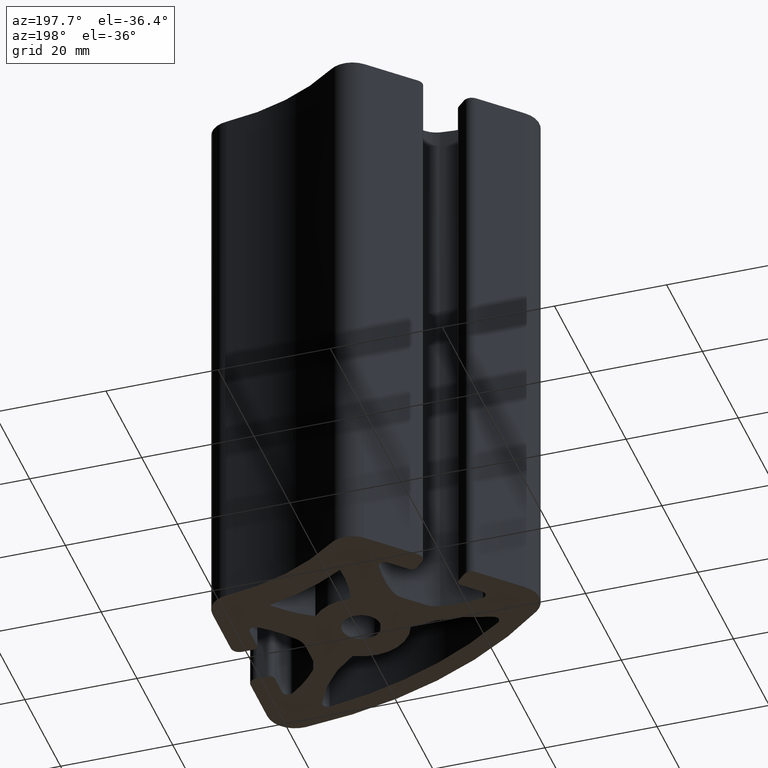
[diagram: clean part render]
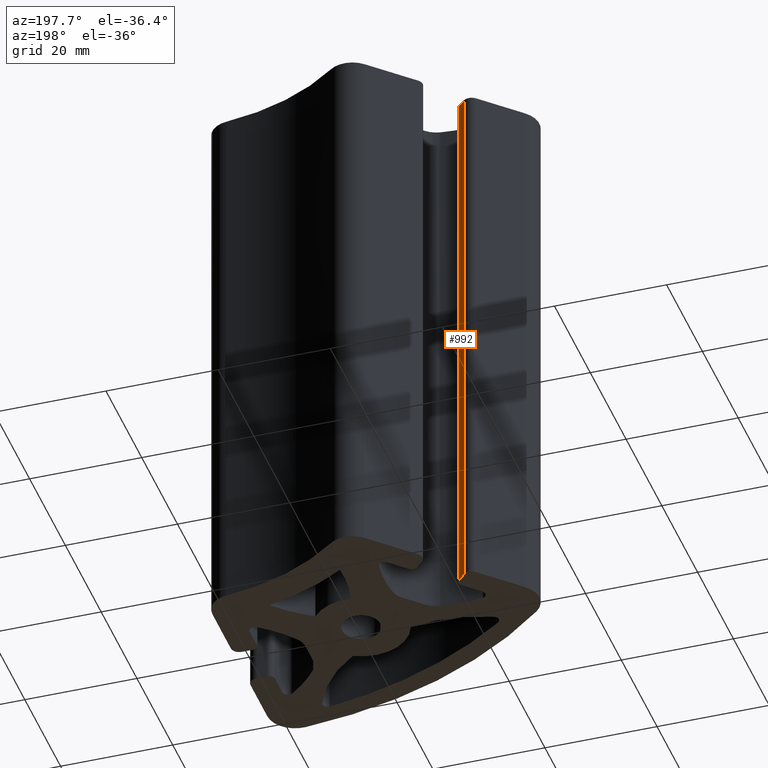
[diagram: same view with one face highlighted and labeled with its STEP entity id]
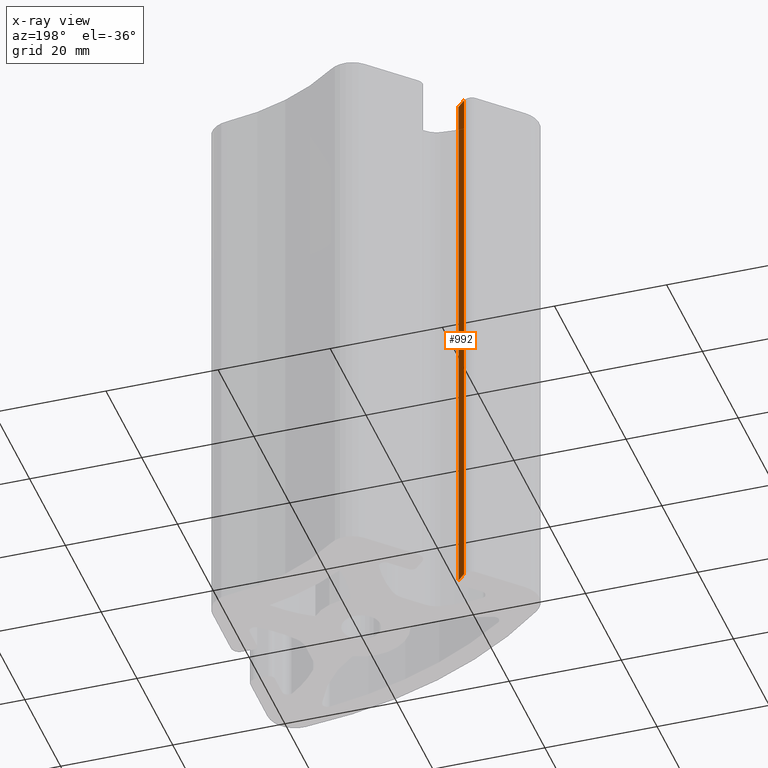
[diagram: x-ray of the same camera — body ghosted, the highlighted face saturated]
A machine part, auxiliary view. The second image highlights one B-rep face of the part: STEP entity #992.
The next image is the same camera in x-ray: the body ghosted, the highlighted face saturated — about 0% of this face is hidden behind the body in this view.
In plain terms, the highlighted planar face has unit normal (0.7071, 0.7071, 0).
Its self-contained STEP definition (entity closure, byte-faithful):
#27=PLANE('',#1069);
#54=FACE_OUTER_BOUND('',#107,.T.);
#107=EDGE_LOOP('',(#699,#700,#701,#702));
#177=LINE('',#1590,#255);
#178=LINE('',#1594,#256);
#179=LINE('',#1596,#257);
#180=LINE('',#1597,#258);
#255=VECTOR('',#1260,100.);
#256=VECTOR('',#1265,2.00000000003804);
#257=VECTOR('',#1266,100.);
#258=VECTOR('',#1267,2.00000000003804);
#413=VERTEX_POINT('',#1587);
#414=VERTEX_POINT('',#1589);
#415=VERTEX_POINT('',#1593);
#416=VERTEX_POINT('',#1595);
#530=EDGE_CURVE('',#413,#414,#177,.T.);
#532=EDGE_CURVE('',#413,#415,#178,.T.);
#533=EDGE_CURVE('',#415,#416,#179,.T.);
#534=EDGE_CURVE('',#414,#416,#180,.T.);
#699=ORIENTED_EDGE('',*,*,#532,.T.);
#700=ORIENTED_EDGE('',*,*,#533,.T.);
#701=ORIENTED_EDGE('',*,*,#534,.F.);
#702=ORIENTED_EDGE('',*,*,#530,.F.);
#992=ADVANCED_FACE('',(#54),#27,.T.);
#1069=AXIS2_PLACEMENT_3D('',#1592,#1263,#1264);
#1260=DIRECTION('',(0.,0.,1.));
#1263=DIRECTION('center_axis',(0.707106832886573,0.707106729486518,0.));
#1264=DIRECTION('ref_axis',(0.,0.,-1.));
#1265=DIRECTION('',(-0.707106729486518,0.707106832886574,0.));
#1266=DIRECTION('',(0.,0.,1.));
#1267=DIRECTION('',(-0.707106729486518,0.707106832886574,0.));
#1587=CARTESIAN_POINT('',(-19.8189537566771,7.70306566936529,0.));
#1589=CARTESIAN_POINT('',(-19.8189537566771,7.70306566936529,100.));
#1590=CARTESIAN_POINT('',(-19.8189537566771,7.70306566936529,0.));
#1592=CARTESIAN_POINT('Origin',(-19.8189537566771,7.70306566936529,0.));
#1593=CARTESIAN_POINT('',(-21.233167215677,9.11727933516533,0.));
#1594=CARTESIAN_POINT('',(-19.8189537566771,7.70306566936529,0.));
#1595=CARTESIAN_POINT('',(-21.233167215677,9.11727933516533,100.));
#1596=CARTESIAN_POINT('',(-21.233167215677,9.11727933516533,0.));
#1597=CARTESIAN_POINT('',(-19.8189537566771,7.70306566936529,100.));